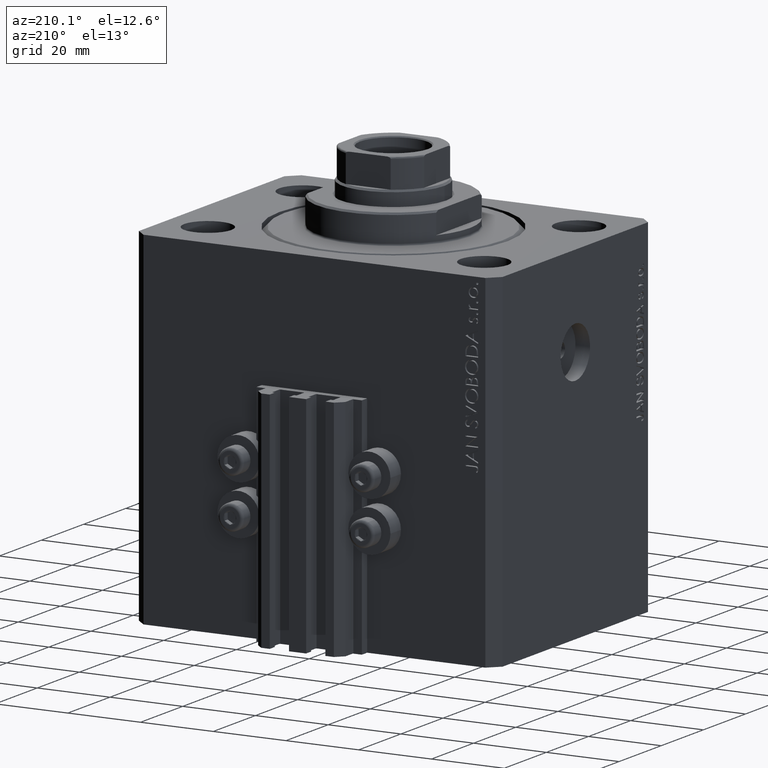
[diagram: clean part render]
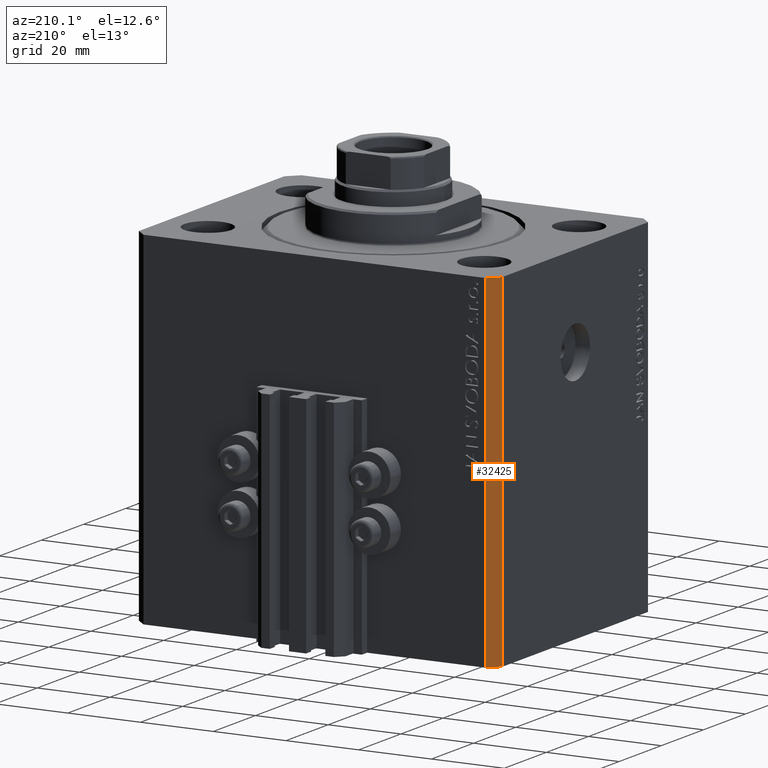
[diagram: same view with one face highlighted and labeled with its STEP entity id]
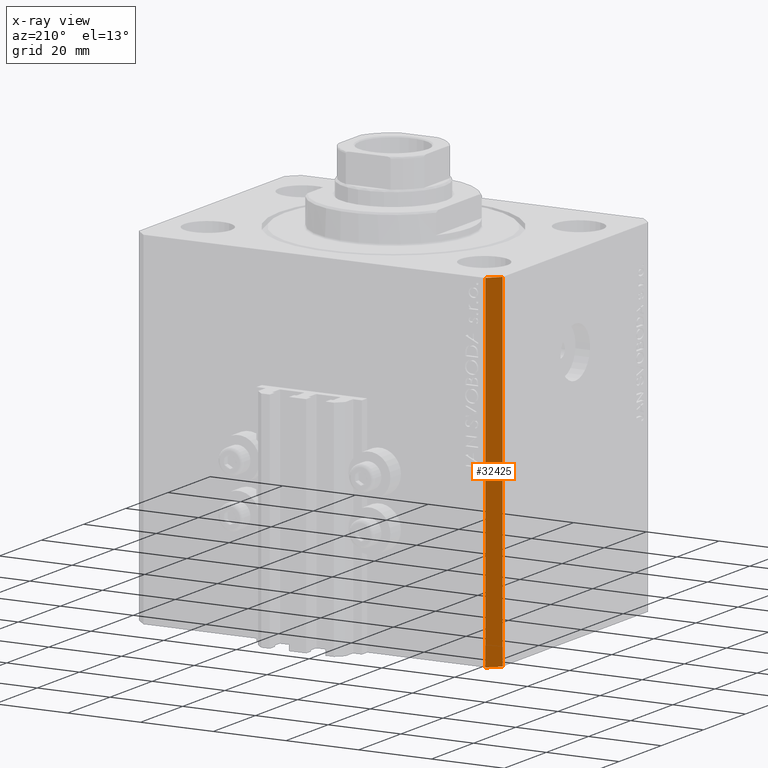
[diagram: x-ray of the same camera — body ghosted, the highlighted face saturated]
A machine part, auxiliary view. The second image highlights one B-rep face of the part: STEP entity #32425.
The next image is the same camera in x-ray: the body ghosted, the highlighted face saturated — about 0% of this face is hidden behind the body in this view.
In plain terms, the highlighted planar face has unit normal (-0.7071, 0.7071, 0).
Its self-contained STEP definition (entity closure, byte-faithful):
#528 = VECTOR ( 'NONE', #13189, 1000.000000000000000 ) ;
#2461 = LINE ( 'NONE', #43388, #29053 ) ;
#3882 = CARTESIAN_POINT ( 'NONE',  ( -47.00000000000001421, 37.50000000000000000, -95.00000000000000000 ) ) ;
#6834 = VECTOR ( 'NONE', #18485, 1000.000000000000000 ) ;
#11102 = EDGE_CURVE ( 'NONE', #29448, #19018, #2461, .T. ) ;
#13189 = DIRECTION ( 'NONE',  ( -0.7071067811865483499, -0.7071067811865466846, 0.000000000000000000 ) ) ;
#14409 = VERTEX_POINT ( 'NONE', #20088 ) ;
#15120 = CARTESIAN_POINT ( 'NONE',  ( -47.00000000000001421, 37.50000000000000000, -95.00000000000000000 ) ) ;
#15347 = ORIENTED_EDGE ( 'NONE', *, *, #11102, .T. ) ;
#15365 = PLANE ( 'NONE',  #32993 ) ;
#16479 = EDGE_CURVE ( 'NONE', #14409, #19018, #35664, .T. ) ;
#16592 = VERTEX_POINT ( 'NONE', #32545 ) ;
#16966 = EDGE_LOOP ( 'NONE', ( #29278, #27200, #44986, #15347 ) ) ;
#17696 = VECTOR ( 'NONE', #42293, 1000.000000000000000 ) ;
#18485 = DIRECTION ( 'NONE',  ( 0.000000000000000000, 0.000000000000000000, 1.000000000000000000 ) ) ;
#19018 = VERTEX_POINT ( 'NONE', #43182 ) ;
#20088 = CARTESIAN_POINT ( 'NONE',  ( -47.00000000000001421, 37.50000000000000000, 0.000000000000000000 ) ) ;
#27200 = ORIENTED_EDGE ( 'NONE', *, *, #45219, .F. ) ;
#29053 = VECTOR ( 'NONE', #46747, 1000.000000000000000 ) ;
#29278 = ORIENTED_EDGE ( 'NONE', *, *, #16479, .F. ) ;
#29448 = VERTEX_POINT ( 'NONE', #38906 ) ;
#30884 = EDGE_CURVE ( 'NONE', #16592, #29448, #44937, .T. ) ;
#32425 = ADVANCED_FACE ( 'NONE', ( #43619 ), #15365, .T. ) ;
#32545 = CARTESIAN_POINT ( 'NONE',  ( -47.00000000000001421, 37.50000000000000000, -95.00000000000000000 ) ) ;
#32993 = AXIS2_PLACEMENT_3D ( 'NONE', #15120, #40472, #40011 ) ;
#33069 = LINE ( 'NONE', #3882, #6834 ) ;
#35664 = LINE ( 'NONE', #39477, #528 ) ;
#38906 = CARTESIAN_POINT ( 'NONE',  ( -50.00000000000001421, 34.50000000000000000, -95.00000000000000000 ) ) ;
#39477 = CARTESIAN_POINT ( 'NONE',  ( -47.00000000000001421, 37.50000000000000000, 0.000000000000000000 ) ) ;
#40011 = DIRECTION ( 'NONE',  ( -0.7071067811865483499, -0.7071067811865465735, 0.000000000000000000 ) ) ;
#40472 = DIRECTION ( 'NONE',  ( -0.7071067811865466846, 0.7071067811865484609, 0.000000000000000000 ) ) ;
#42293 = DIRECTION ( 'NONE',  ( -0.7071067811865483499, -0.7071067811865466846, 0.000000000000000000 ) ) ;
#43182 = CARTESIAN_POINT ( 'NONE',  ( -50.00000000000001421, 34.50000000000000000, 0.000000000000000000 ) ) ;
#43388 = CARTESIAN_POINT ( 'NONE',  ( -50.00000000000001421, 34.50000000000000000, -95.00000000000000000 ) ) ;
#43619 = FACE_OUTER_BOUND ( 'NONE', #16966, .T. ) ;
#44937 = LINE ( 'NONE', #45887, #17696 ) ;
#44986 = ORIENTED_EDGE ( 'NONE', *, *, #30884, .T. ) ;
#45219 = EDGE_CURVE ( 'NONE', #16592, #14409, #33069, .T. ) ;
#45887 = CARTESIAN_POINT ( 'NONE',  ( -47.00000000000001421, 37.50000000000000000, -95.00000000000000000 ) ) ;
#46747 = DIRECTION ( 'NONE',  ( 0.000000000000000000, 0.000000000000000000, 1.000000000000000000 ) ) ;